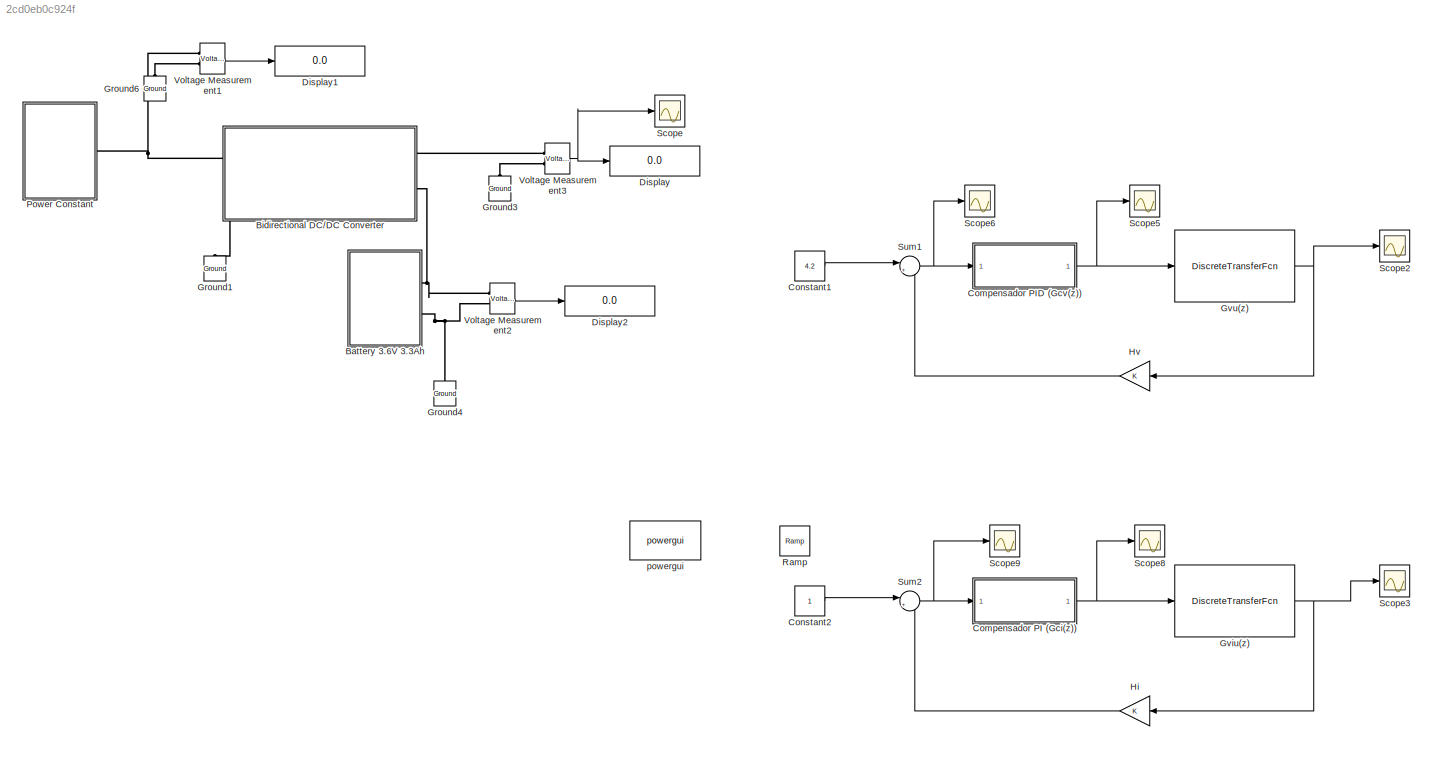
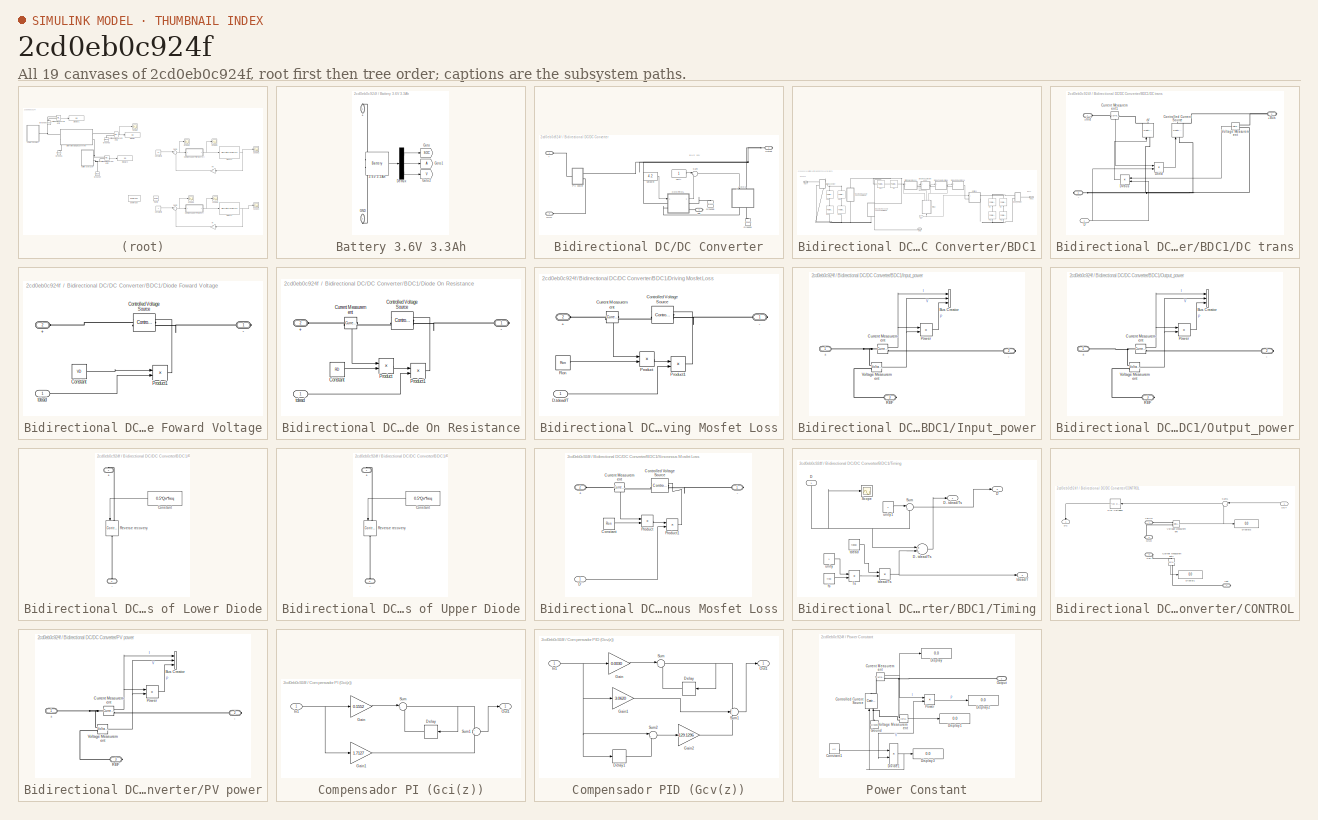
[diagram: thumbnail index - all 19 canvases of the model, root first then tree order]
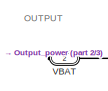
[diagram: Bidirectional DC/DC Converter/BDC1 - part 1/3, top left region]
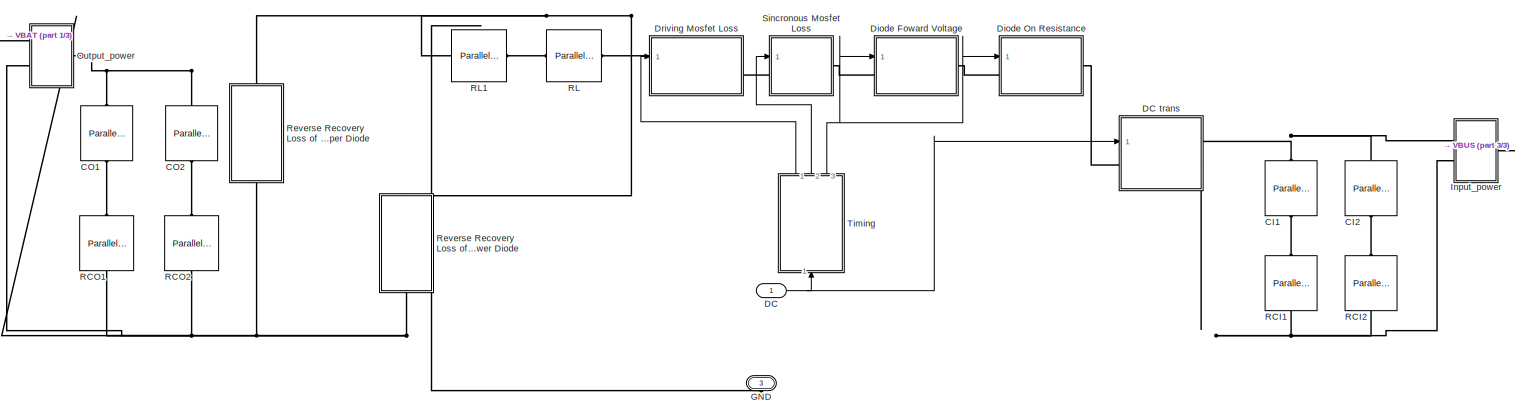
[diagram: Bidirectional DC/DC Converter/BDC1 - part 2/3, most of the canvas]
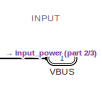
[diagram: Bidirectional DC/DC Converter/BDC1 - part 3/3, middle right region]
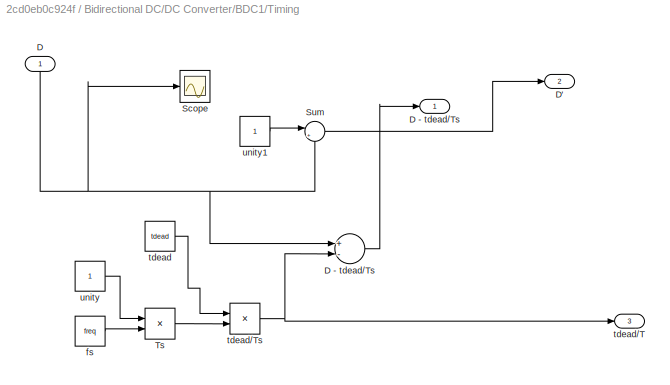
MODEL slx_2cd0eb0c924f
KIND model
CONFIG AbsTol = auto
CONFIG EnableMultiTasking = off
CONFIG FixedStep = auto
CONFIG MaxStep = auto
CONFIG MinStep = auto
CONFIG RelTol = 1e-3
CONFIG SampleTimeConstraint = Unconstrained
CONFIG Solver = VariableStepAuto
CONFIG SolverName = VariableStepAuto
CONFIG StartTime = 0.0
CONFIG StopTime = 1
BLOCK [SubSystem] Battery 3.6V 3.3Ah
  Ports = [0, 0, 0, 0, 0, 0, 2]
  RequestExecContextInheritance = off
BLOCK [PMIOPort] Battery 3.6V 3.3Ah/+
  Side = Right
BLOCK [Reference] Battery 3.6V 3.3Ah/3.6V 3.3Ah  REF=electricdrivelib/Extra Sources/Battery
  Ports = [0, 1, 0, 0, 0, 2]
  SourceBlock = electricdrivelib/Extra Sources/Battery
  SourceProductBaseCode = PS
  SourceProductName = Simscape Electrical
  SourceType = Battery
BLOCK [Demux] Battery 3.6V 3.3Ah/Demux
  DisplayOption = bar
  Outputs = 3
  Ports = [1, 3]
BLOCK [PMIOPort] Battery 3.6V 3.3Ah/GND
  Port = 2
  Side = Right
BLOCK [Goto] Battery 3.6V 3.3Ah/Goto
  GotoTag = SOC
  TagVisibility = global
BLOCK [Goto] Battery 3.6V 3.3Ah/Goto1
  TagVisibility = global
BLOCK [Goto] Battery 3.6V 3.3Ah/Goto2
  GotoTag = V
  TagVisibility = global
BLOCK [SubSystem] Bidirectional DC//DC Converter
  Ports = [0, 0, 0, 0, 0, 2, 2]
  RequestExecContextInheritance = off
BLOCK [PMIOPort] Bidirectional DC//DC Converter/+
  Side = Left
BLOCK [SubSystem] Bidirectional DC//DC Converter/BDC1
  Ports = [1, 0, 0, 0, 0, 1, 2]
  RequestExecContextInheritance = off
BLOCK [Reference] Bidirectional DC//DC Converter/BDC1/CI1  REF=powerlib/Elements/Parallel RLC Branch
  AttributesFormatString = \n
  Ports = [0, 0, 0, 0, 0, 1, 1]
  SourceBlock = powerlib/Elements/Parallel RLC Branch
  SourceProductBaseCode = PS
  SourceProductName = Simscape Electrical
  SourceType = Parallel RLC Branch
BLOCK [Reference] Bidirectional DC//DC Converter/BDC1/CI2  REF=powerlib/Elements/Parallel RLC Branch
  AttributesFormatString = \n
  Ports = [0, 0, 0, 0, 0, 1, 1]
  SourceBlock = powerlib/Elements/Parallel RLC Branch
  SourceProductBaseCode = PS
  SourceProductName = Simscape Electrical
  SourceType = Parallel RLC Branch
BLOCK [Reference] Bidirectional DC//DC Converter/BDC1/CO1  REF=powerlib/Elements/Parallel RLC Branch
  AttributesFormatString = \n
  Ports = [0, 0, 0, 0, 0, 1, 1]
  SourceBlock = powerlib/Elements/Parallel RLC Branch
  SourceProductBaseCode = PS
  SourceProductName = Simscape Electrical
  SourceType = Parallel RLC Branch
BLOCK [Reference] Bidirectional DC//DC Converter/BDC1/CO2  REF=powerlib/Elements/Parallel RLC Branch
  AttributesFormatString = \n
  Ports = [0, 0, 0, 0, 0, 1, 1]
  SourceBlock = powerlib/Elements/Parallel RLC Branch
  SourceProductBaseCode = PS
  SourceProductName = Simscape Electrical
  SourceType = Parallel RLC Branch
BLOCK [Inport] Bidirectional DC//DC Converter/BDC1/DC
  IconDisplay = Port number
BLOCK [SubSystem] Bidirectional DC//DC Converter/BDC1/DC trans
  Ports = [1, 0, 0, 0, 0, 1, 2]
  RequestExecContextInheritance = off
BLOCK [PMIOPort] Bidirectional DC//DC Converter/BDC1/DC trans/+Bus
  Port = 2
  Side = Right
BLOCK [PMIOPort] Bidirectional DC//DC Converter/BDC1/DC trans/+Ind
  Side = Left
BLOCK [PMIOPort] Bidirectional DC//DC Converter/BDC1/DC trans/-
  Port = 3
  Side = Right
BLOCK [Reference] Bidirectional DC//DC Converter/BDC1/DC trans/Controlled Current Source  REF=powerlib/Electrical
Sources/Controlled Current Source
  Ports = [1, 0, 0, 0, 0, 1, 1]
  SourceBlock = powerlib/Electrical\nSources/Controlled Current Source
  SourceProductBaseCode = PS
  SourceProductName = Simscape Electrical
  SourceType = Controlled Current Source
BLOCK [Reference] Bidirectional DC//DC Converter/BDC1/DC trans/Current Measurement1  REF=powerlib/Measurements/Current Measurement
  Ports = [0, 1, 0, 0, 0, 1, 1]
  SourceBlock = powerlib/Measurements/Current Measurement
  SourceProductBaseCode = PS
  SourceProductName = Simscape Electrical
  SourceType = Current Measurement
  UserDataPersistent = on
BLOCK [Inport] Bidirectional DC//DC Converter/BDC1/DC trans/D
  IconDisplay = Port number
BLOCK [Product] Bidirectional DC//DC Converter/BDC1/DC trans/DIind
  InputSameDT = off
  OutDataTypeStr = Inherit: Inherit via internal rule
  Ports = [2, 1]
  RndMeth = Floor
  SaturateOnIntegerOverflow = off
BLOCK [Product] Bidirectional DC//DC Converter/BDC1/DC trans/DVbus
  InputSameDT = off
  OutDataTypeStr = Inherit: Inherit via internal rule
  Ports = [2, 1]
  RndMeth = Floor
  SaturateOnIntegerOverflow = off
BLOCK [Reference] Bidirectional DC//DC Converter/BDC1/DC trans/Voltage Measurement  REF=powerlib/Measurements/Voltage Measurement
  Ports = [0, 1, 0, 0, 0, 2]
  SourceBlock = powerlib/Measurements/Voltage Measurement
  SourceProductBaseCode = PS
  SourceProductName = Simscape Electrical
  SourceType = Voltage Measurement
  UserDataPersistent = on
BLOCK [Reference] Bidirectional DC//DC Converter/BDC1/DC trans/cV  REF=powerlib/Electrical
Sources/Controlled Voltage Source
  Ports = [1, 0, 0, 0, 0, 1, 1]
  SourceBlock = powerlib/Electrical\nSources/Controlled Voltage Source
  SourceProductBaseCode = PS
  SourceProductName = Simscape Electrical
  SourceType = Controlled Voltage Source
BLOCK [SubSystem] Bidirectional DC//DC Converter/BDC1/Diode Foward Voltage
  Ports = [1, 0, 0, 0, 0, 1, 1]
  RequestExecContextInheritance = off
BLOCK [PMIOPort] Bidirectional DC//DC Converter/BDC1/Diode Foward Voltage/+
  Port = 2
  Side = Left
BLOCK [PMIOPort] Bidirectional DC//DC Converter/BDC1/Diode Foward Voltage/-
  Side = Right
BLOCK [Constant] Bidirectional DC//DC Converter/BDC1/Diode Foward Voltage/Constant
  Value = VD
BLOCK [Reference] Bidirectional DC//DC Converter/BDC1/Diode Foward Voltage/Controlled Voltage Source  REF=powerlib/Electrical
Sources/Controlled Voltage Source
  Ports = [1, 0, 0, 0, 0, 1, 1]
  SourceBlock = powerlib/Electrical\nSources/Controlled Voltage Source
  SourceProductBaseCode = PS
  SourceProductName = Simscape Electrical
  SourceType = Controlled Voltage Source
BLOCK [Product] Bidirectional DC//DC Converter/BDC1/Diode Foward Voltage/Product1
  InputSameDT = off
  OutDataTypeStr = Inherit: Inherit via internal rule
  Ports = [2, 1]
  RndMeth = Floor
  SaturateOnIntegerOverflow = off
BLOCK [Inport] Bidirectional DC//DC Converter/BDC1/Diode Foward Voltage/tdead
  IconDisplay = Port number
BLOCK [SubSystem] Bidirectional DC//DC Converter/BDC1/Diode On Resistance
  Ports = [1, 0, 0, 0, 0, 1, 1]
  RequestExecContextInheritance = off
BLOCK [PMIOPort] Bidirectional DC//DC Converter/BDC1/Diode On Resistance/+
  Port = 2
  Side = Left
BLOCK [PMIOPort] Bidirectional DC//DC Converter/BDC1/Diode On Resistance/-
  Side = Right
BLOCK [Constant] Bidirectional DC//DC Converter/BDC1/Diode On Resistance/Constant
  Value = RD
BLOCK [Reference] Bidirectional DC//DC Converter/BDC1/Diode On Resistance/Controlled Voltage Source  REF=powerlib/Electrical
Sources/Controlled Voltage Source
  Ports = [1, 0, 0, 0, 0, 1, 1]
  SourceBlock = powerlib/Electrical\nSources/Controlled Voltage Source
  SourceProductBaseCode = PS
  SourceProductName = Simscape Electrical
  SourceType = Controlled Voltage Source
BLOCK [Reference] Bidirectional DC//DC Converter/BDC1/Diode On Resistance/Current Measurement  REF=powerlib/Measurements/Current Measurement
  Ports = [0, 1, 0, 0, 0, 1, 1]
  SourceBlock = powerlib/Measurements/Current Measurement
  SourceProductBaseCode = PS
  SourceProductName = Simscape Electrical
  SourceType = Current Measurement
  UserDataPersistent = on
BLOCK [Product] Bidirectional DC//DC Converter/BDC1/Diode On Resistance/Product
  InputSameDT = off
  OutDataTypeStr = Inherit: Inherit via internal rule
  Ports = [2, 1]
  RndMeth = Floor
  SaturateOnIntegerOverflow = off
BLOCK [Product] Bidirectional DC//DC Converter/BDC1/Diode On Resistance/Product1
  InputSameDT = off
  OutDataTypeStr = Inherit: Inherit via internal rule
  Ports = [2, 1]
  RndMeth = Floor
  SaturateOnIntegerOverflow = off
BLOCK [Inport] Bidirectional DC//DC Converter/BDC1/Diode On Resistance/tdead
  IconDisplay = Port number
BLOCK [SubSystem] Bidirectional DC//DC Converter/BDC1/Driving Mosfet Loss
  Ports = [1, 0, 0, 0, 0, 1, 1]
  RequestExecContextInheritance = off
BLOCK [PMIOPort] Bidirectional DC//DC Converter/BDC1/Driving Mosfet Loss/+
  Port = 2
  Side = Left
BLOCK [PMIOPort] Bidirectional DC//DC Converter/BDC1/Driving Mosfet Loss/-
  Side = Right
BLOCK [Reference] Bidirectional DC//DC Converter/BDC1/Driving Mosfet Loss/Controlled Voltage Source  REF=powerlib/Electrical
Sources/Controlled Voltage Source
  Ports = [1, 0, 0, 0, 0, 1, 1]
  SourceBlock = powerlib/Electrical\nSources/Controlled Voltage Source
  SourceProductBaseCode = PS
  SourceProductName = Simscape Electrical
  SourceType = Controlled Voltage Source
BLOCK [Reference] Bidirectional DC//DC Converter/BDC1/Driving Mosfet Loss/Current Measurement  REF=powerlib/Measurements/Current Measurement
  Ports = [0, 1, 0, 0, 0, 1, 1]
  SourceBlock = powerlib/Measurements/Current Measurement
  SourceProductBaseCode = PS
  SourceProductName = Simscape Electrical
  SourceType = Current Measurement
  UserDataPersistent = on
BLOCK [Inport] Bidirectional DC//DC Converter/BDC1/Driving Mosfet Loss/D-tdead//T
  IconDisplay = Port number
BLOCK [Product] Bidirectional DC//DC Converter/BDC1/Driving Mosfet Loss/Product
  InputSameDT = off
  OutDataTypeStr = Inherit: Inherit via internal rule
  Ports = [2, 1]
  RndMeth = Floor
  SaturateOnIntegerOverflow = off
BLOCK [Product] Bidirectional DC//DC Converter/BDC1/Driving Mosfet Loss/Product1
  InputSameDT = off
  OutDataTypeStr = Inherit: Inherit via internal rule
  Ports = [2, 1]
  RndMeth = Floor
  SaturateOnIntegerOverflow = off
BLOCK [Constant] Bidirectional DC//DC Converter/BDC1/Driving Mosfet Loss/Ron
  Value = Ron
BLOCK [PMIOPort] Bidirectional DC//DC Converter/BDC1/GND
  Port = 3
  Side = Right
BLOCK [SubSystem] Bidirectional DC//DC Converter/BDC1/Input_power
  Ports = [0, 0, 0, 0, 0, 1, 2]
  RequestExecContextInheritance = off
BLOCK [PMIOPort] Bidirectional DC//DC Converter/BDC1/Input_power/+
  Side = Left
BLOCK [PMIOPort] Bidirectional DC//DC Converter/BDC1/Input_power/-
  Port = 2
  Side = Right
BLOCK [BusCreator] Bidirectional DC//DC Converter/BDC1/Input_power/Bus Creator
  DisplayOption = bar
  InheritFromInputs = on
  Inputs = 3
  Ports = [3, 1]
BLOCK [Reference] Bidirectional DC//DC Converter/BDC1/Input_power/Current Measurement  REF=powerlib/Measurements/Current Measurement
  Ports = [0, 1, 0, 0, 0, 1, 1]
  SourceBlock = powerlib/Measurements/Current Measurement
  SourceProductBaseCode = PS
  SourceProductName = Simscape Electrical
  SourceType = Current Measurement
  UserDataPersistent = on
BLOCK [Product] Bidirectional DC//DC Converter/BDC1/Input_power/Power
  InputSameDT = off
  OutDataTypeStr = Inherit: Inherit via internal rule
  Ports = [2, 1]
  RndMeth = Floor
  SaturateOnIntegerOverflow = off
BLOCK [PMIOPort] Bidirectional DC//DC Converter/BDC1/Input_power/REF
  Port = 3
  Side = Right
BLOCK [Reference] Bidirectional DC//DC Converter/BDC1/Input_power/Voltage Measurement  REF=powerlib/Measurements/Voltage Measurement
  Ports = [0, 1, 0, 0, 0, 2]
  SourceBlock = powerlib/Measurements/Voltage Measurement
  SourceProductBaseCode = PS
  SourceProductName = Simscape Electrical
  SourceType = Voltage Measurement
  UserDataPersistent = on
BLOCK [SubSystem] Bidirectional DC//DC Converter/BDC1/Output_power
  Ports = [0, 0, 0, 0, 0, 1, 2]
  RequestExecContextInheritance = off
BLOCK [PMIOPort] Bidirectional DC//DC Converter/BDC1/Output_power/+
  Side = Left
BLOCK [PMIOPort] Bidirectional DC//DC Converter/BDC1/Output_power/-
  Port = 2
  Side = Right
BLOCK [BusCreator] Bidirectional DC//DC Converter/BDC1/Output_power/Bus Creator
  DisplayOption = bar
  InheritFromInputs = on
  Inputs = 3
  Ports = [3, 1]
BLOCK [Reference] Bidirectional DC//DC Converter/BDC1/Output_power/Current Measurement  REF=powerlib/Measurements/Current Measurement
  Ports = [0, 1, 0, 0, 0, 1, 1]
  SourceBlock = powerlib/Measurements/Current Measurement
  SourceProductBaseCode = PS
  SourceProductName = Simscape Electrical
  SourceType = Current Measurement
  UserDataPersistent = on
BLOCK [Product] Bidirectional DC//DC Converter/BDC1/Output_power/Power
  InputSameDT = off
  OutDataTypeStr = Inherit: Inherit via internal rule
  Ports = [2, 1]
  RndMeth = Floor
  SaturateOnIntegerOverflow = off
BLOCK [PMIOPort] Bidirectional DC//DC Converter/BDC1/Output_power/REF
  Port = 3
  Side = Right
BLOCK [Reference] Bidirectional DC//DC Converter/BDC1/Output_power/Voltage Measurement  REF=powerlib/Measurements/Voltage Measurement
  Ports = [0, 1, 0, 0, 0, 2]
  SourceBlock = powerlib/Measurements/Voltage Measurement
  SourceProductBaseCode = PS
  SourceProductName = Simscape Electrical
  SourceType = Voltage Measurement
  UserDataPersistent = on
BLOCK [Reference] Bidirectional DC//DC Converter/BDC1/RCI1  REF=powerlib/Elements/Parallel RLC Branch
  AttributesFormatString = \n
  Ports = [0, 0, 0, 0, 0, 1, 1]
  SourceBlock = powerlib/Elements/Parallel RLC Branch
  SourceProductBaseCode = PS
  SourceProductName = Simscape Electrical
  SourceType = Parallel RLC Branch
BLOCK [Reference] Bidirectional DC//DC Converter/BDC1/RCI2  REF=powerlib/Elements/Parallel RLC Branch
  AttributesFormatString = \n
  Ports = [0, 0, 0, 0, 0, 1, 1]
  SourceBlock = powerlib/Elements/Parallel RLC Branch
  SourceProductBaseCode = PS
  SourceProductName = Simscape Electrical
  SourceType = Parallel RLC Branch
BLOCK [Reference] Bidirectional DC//DC Converter/BDC1/RCO1  REF=powerlib/Elements/Parallel RLC Branch
  AttributesFormatString = \n
  Ports = [0, 0, 0, 0, 0, 1, 1]
  SourceBlock = powerlib/Elements/Parallel RLC Branch
  SourceProductBaseCode = PS
  SourceProductName = Simscape Electrical
  SourceType = Parallel RLC Branch
BLOCK [Reference] Bidirectional DC//DC Converter/BDC1/RCO2  REF=powerlib/Elements/Parallel RLC Branch
  AttributesFormatString = \n
  Ports = [0, 0, 0, 0, 0, 1, 1]
  SourceBlock = powerlib/Elements/Parallel RLC Branch
  SourceProductBaseCode = PS
  SourceProductName = Simscape Electrical
  SourceType = Parallel RLC Branch
BLOCK [Reference] Bidirectional DC//DC Converter/BDC1/RL  REF=powerlib/Elements/Parallel RLC Branch
  AttributesFormatString = \n
  Ports = [0, 0, 0, 0, 0, 1, 1]
  SourceBlock = powerlib/Elements/Parallel RLC Branch
  SourceProductBaseCode = PS
  SourceProductName = Simscape Electrical
  SourceType = Parallel RLC Branch
BLOCK [Reference] Bidirectional DC//DC Converter/BDC1/RL1  REF=powerlib/Elements/Parallel RLC Branch
  AttributesFormatString = \n
  Ports = [0, 0, 0, 0, 0, 1, 1]
  SourceBlock = powerlib/Elements/Parallel RLC Branch
  SourceProductBaseCode = PS
  SourceProductName = Simscape Electrical
  SourceType = Parallel RLC Branch
BLOCK [SubSystem] Bidirectional DC//DC Converter/BDC1/Reverse Recovery Loss of Lower Diode
  Ports = [0, 0, 0, 0, 0, 1, 1]
  RequestExecContextInheritance = off
BLOCK [PMIOPort] Bidirectional DC//DC Converter/BDC1/Reverse Recovery Loss of Lower Diode/+
  Side = Right
BLOCK [PMIOPort] Bidirectional DC//DC Converter/BDC1/Reverse Recovery Loss of Lower Diode/-
  Port = 2
  Side = Left
BLOCK [Constant] Bidirectional DC//DC Converter/BDC1/Reverse Recovery Loss of Lower Diode/Constant
  Value = 0.5*Qrr*freq
BLOCK [Reference] Bidirectional DC//DC Converter/BDC1/Reverse Recovery Loss of Lower Diode/Reverse recovery  REF=powerlib/Electrical
Sources/Controlled Current Source
  Ports = [1, 0, 0, 0, 0, 1, 1]
  SourceBlock = powerlib/Electrical\nSources/Controlled Current Source
  SourceProductBaseCode = PS
  SourceProductName = Simscape Electrical
  SourceType = Controlled Current Source
BLOCK [SubSystem] Bidirectional DC//DC Converter/BDC1/Reverse Recovery Loss of Upper Diode
  Ports = [0, 0, 0, 0, 0, 1, 1]
  RequestExecContextInheritance = off
BLOCK [PMIOPort] Bidirectional DC//DC Converter/BDC1/Reverse Recovery Loss of Upper Diode/+
  Side = Right
BLOCK [PMIOPort] Bidirectional DC//DC Converter/BDC1/Reverse Recovery Loss of Upper Diode/-
  Port = 2
  Side = Left
BLOCK [Constant] Bidirectional DC//DC Converter/BDC1/Reverse Recovery Loss of Upper Diode/Constant
  Value = 0.5*Qrr*freq
BLOCK [Reference] Bidirectional DC//DC Converter/BDC1/Reverse Recovery Loss of Upper Diode/Reverse recovery  REF=powerlib/Electrical
Sources/Controlled Current Source
  Ports = [1, 0, 0, 0, 0, 1, 1]
  SourceBlock = powerlib/Electrical\nSources/Controlled Current Source
  SourceProductBaseCode = PS
  SourceProductName = Simscape Electrical
  SourceType = Controlled Current Source
BLOCK [SubSystem] Bidirectional DC//DC Converter/BDC1/Sincronous Mosfet Loss
  Ports = [1, 0, 0, 0, 0, 1, 1]
  RequestExecContextInheritance = off
BLOCK [PMIOPort] Bidirectional DC//DC Converter/BDC1/Sincronous Mosfet Loss/+
  Port = 2
  Side = Left
BLOCK [PMIOPort] Bidirectional DC//DC Converter/BDC1/Sincronous Mosfet Loss/-
  Side = Right
BLOCK [Constant] Bidirectional DC//DC Converter/BDC1/Sincronous Mosfet Loss/Constant
  Value = Ron
BLOCK [Reference] Bidirectional DC//DC Converter/BDC1/Sincronous Mosfet Loss/Controlled Voltage Source  REF=powerlib/Electrical
Sources/Controlled Voltage Source
  Ports = [1, 0, 0, 0, 0, 1, 1]
  SourceBlock = powerlib/Electrical\nSources/Controlled Voltage Source
  SourceProductBaseCode = PS
  SourceProductName = Simscape Electrical
  SourceType = Controlled Voltage Source
BLOCK [Reference] Bidirectional DC//DC Converter/BDC1/Sincronous Mosfet Loss/Current Measurement  REF=powerlib/Measurements/Current Measurement
  Ports = [0, 1, 0, 0, 0, 1, 1]
  SourceBlock = powerlib/Measurements/Current Measurement
  SourceProductBaseCode = PS
  SourceProductName = Simscape Electrical
  SourceType = Current Measurement
  UserDataPersistent = on
BLOCK [Inport] Bidirectional DC//DC Converter/BDC1/Sincronous Mosfet Loss/D'
  IconDisplay = Port number
BLOCK [Product] Bidirectional DC//DC Converter/BDC1/Sincronous Mosfet Loss/Product
  InputSameDT = off
  OutDataTypeStr = Inherit: Inherit via internal rule
  Ports = [2, 1]
  RndMeth = Floor
  SaturateOnIntegerOverflow = off
BLOCK [Product] Bidirectional DC//DC Converter/BDC1/Sincronous Mosfet Loss/Product1
  InputSameDT = off
  OutDataTypeStr = Inherit: Inherit via internal rule
  Ports = [2, 1]
  RndMeth = Floor
  SaturateOnIntegerOverflow = off
BLOCK [SubSystem] Bidirectional DC//DC Converter/BDC1/Timing
  Ports = [1, 3]
  RequestExecContextInheritance = off
BLOCK [Inport] Bidirectional DC//DC Converter/BDC1/Timing/D
  IconDisplay = Port number
BLOCK [Outport] Bidirectional DC//DC Converter/BDC1/Timing/D - tdead//Ts
  IconDisplay = Port number
BLOCK [Sum] Bidirectional DC//DC Converter/BDC1/Timing/D - tdead//Ts 
  InputSameDT = off
  Inputs = +-
  OutDataTypeStr = Inherit: Inherit via internal rule
  Ports = [2, 1]
  SaturateOnIntegerOverflow = off
BLOCK [Outport] Bidirectional DC//DC Converter/BDC1/Timing/D'
  IconDisplay = Port number
  Port = 2
BLOCK [Scope] Bidirectional DC//DC Converter/BDC1/Timing/Scope
  Floating = off
  NumInputPorts = 1
  Ports = [1]
  ScopeSpecificationString = Simulink.scopes.TimeScopeBlockCfg('CurrentConfiguration', extmgr.ConfigurationSet(extmgr.Configuration('Core','General UI',true),extmgr.Configuration('Core','Source UI',true),extmgr.Configuration('Sources','WiredSimulink',true,'DataLoggingVariableName','ScopeData4'),extmgr.Configuration('Visuals','Time Domain',true,'SerializedDisplays',{struct('MinYLimReal','-0.0625','MaxYLimReal','1.0625','YLabel...<+1354ch>
BLOCK [Sum] Bidirectional DC//DC Converter/BDC1/Timing/Sum
  IconShape = round
  InputSameDT = off
  Inputs = |+-
  OutDataTypeStr = Inherit: Inherit via internal rule
  Ports = [2, 1]
  SaturateOnIntegerOverflow = off
BLOCK [Product] Bidirectional DC//DC Converter/BDC1/Timing/Ts
  InputSameDT = off
  Inputs = */
  OutDataTypeStr = Inherit: Inherit via internal rule
  Ports = [2, 1]
  RndMeth = Floor
  SaturateOnIntegerOverflow = off
BLOCK [Constant] Bidirectional DC//DC Converter/BDC1/Timing/fs
  Value = freq
BLOCK [Constant] Bidirectional DC//DC Converter/BDC1/Timing/tdead
  Value = tdead
BLOCK [Outport] Bidirectional DC//DC Converter/BDC1/Timing/tdead//T
  IconDisplay = Port number
  Port = 3
BLOCK [Product] Bidirectional DC//DC Converter/BDC1/Timing/tdead//Ts
  InputSameDT = off
  Inputs = */
  OutDataTypeStr = Inherit: Inherit via internal rule
  Ports = [2, 1]
  RndMeth = Floor
  SaturateOnIntegerOverflow = off
BLOCK [Constant] Bidirectional DC//DC Converter/BDC1/Timing/unity
BLOCK [Constant] Bidirectional DC//DC Converter/BDC1/Timing/unity1
BLOCK [PMIOPort] Bidirectional DC//DC Converter/BDC1/VBAT
  Port = 2
  Side = Right
BLOCK [PMIOPort] Bidirectional DC//DC Converter/BDC1/VBUS 
  Side = Left
BLOCK [SubSystem] Bidirectional DC//DC Converter/CONTROL
  Ports = [1, 1, 0, 0, 0, 2, 2]
  RequestExecContextInheritance = off
BLOCK [PMIOPort] Bidirectional DC//DC Converter/CONTROL/Curr
  Port = 3
  Side = Left
BLOCK [Reference] Bidirectional DC//DC Converter/CONTROL/Current Measurement1  REF=powerlib/Measurements/Current Measurement
  Ports = [0, 1, 0, 0, 0, 1, 1]
  SourceBlock = powerlib/Measurements/Current Measurement
  SourceProductBaseCode = PS
  SourceProductName = Simscape Electrical
  SourceType = Current Measurement
  UserDataPersistent = on
BLOCK [Outport] Bidirectional DC//DC Converter/CONTROL/DC
  IconDisplay = Port number
BLOCK [Display] Bidirectional DC//DC Converter/CONTROL/Display1
  Decimation = 1
  Ports = [1]
BLOCK [Display] Bidirectional DC//DC Converter/CONTROL/Display2
  Decimation = 1
  Ports = [1]
BLOCK [PMIOPort] Bidirectional DC//DC Converter/CONTROL/GND
  Port = 2
  Side = Right
BLOCK [Reference] Bidirectional DC//DC Converter/CONTROL/PID Voltage1  REF=simulink/Continuous/PID Controller
  Ports = [1, 1]
  SourceBlock = simulink/Continuous/PID Controller
  SourceProductBaseCode = SL
  SourceProductName = Simulink
  SourceType = PID 1dof
BLOCK [Inport] Bidirectional DC//DC Converter/CONTROL/SET
  IconDisplay = Port number
BLOCK [Sum] Bidirectional DC//DC Converter/CONTROL/Sum1
  IconShape = round
  InputSameDT = off
  Inputs = |+-
  OutDataTypeStr = Inherit: Inherit via internal rule
  Ports = [2, 1]
  SaturateOnIntegerOverflow = off
BLOCK [PMIOPort] Bidirectional DC//DC Converter/CONTROL/VBUS
  Side = Left
BLOCK [Reference] Bidirectional DC//DC Converter/CONTROL/Voltage Measurement  REF=powerlib/Measurements/Voltage Measurement
  Ports = [0, 1, 0, 0, 0, 2]
  SourceBlock = powerlib/Measurements/Voltage Measurement
  SourceProductBaseCode = PS
  SourceProductName = Simscape Electrical
  SourceType = Voltage Measurement
  UserDataPersistent = on
BLOCK [PMIOPort] Bidirectional DC//DC Converter/CONTROL/iout
  Port = 4
  Side = Right
BLOCK [PMIOPort] Bidirectional DC//DC Converter/GND
  Port = 3
  Side = Left
BLOCK [Reference] Bidirectional DC//DC Converter/Ground1  REF=powerlib/Elements/Ground
  Ports = [0, 0, 0, 0, 0, 1]
  SourceBlock = powerlib/Elements/Ground
  SourceProductBaseCode = PS
  SourceProductName = Simscape Electrical
  SourceType = Ground
BLOCK [Reference] Bidirectional DC//DC Converter/Ground5  REF=powerlib/Elements/Ground
  Ports = [0, 0, 0, 0, 0, 1]
  SourceBlock = powerlib/Elements/Ground
  SourceProductBaseCode = PS
  SourceProductName = Simscape Electrical
  SourceType = Ground
BLOCK [PMIOPort] Bidirectional DC//DC Converter/Output
  Port = 2
  Side = Right
BLOCK [SubSystem] Bidirectional DC//DC Converter/PV power
  Ports = [0, 0, 0, 0, 0, 1, 2]
  RequestExecContextInheritance = off
BLOCK [PMIOPort] Bidirectional DC//DC Converter/PV power/+
  Side = Left
BLOCK [PMIOPort] Bidirectional DC//DC Converter/PV power/-
  Port = 2
  Side = Right
BLOCK [BusCreator] Bidirectional DC//DC Converter/PV power/Bus Creator
  DisplayOption = bar
  InheritFromInputs = on
  Inputs = 3
  Ports = [3, 1]
BLOCK [Reference] Bidirectional DC//DC Converter/PV power/Current Measurement  REF=powerlib/Measurements/Current Measurement
  Ports = [0, 1, 0, 0, 0, 1, 1]
  SourceBlock = powerlib/Measurements/Current Measurement
  SourceProductBaseCode = PS
  SourceProductName = Simscape Electrical
  SourceType = Current Measurement
  UserDataPersistent = on
BLOCK [Product] Bidirectional DC//DC Converter/PV power/Power
  InputSameDT = off
  OutDataTypeStr = Inherit: Inherit via internal rule
  Ports = [2, 1]
  RndMeth = Floor
  SaturateOnIntegerOverflow = off
BLOCK [PMIOPort] Bidirectional DC//DC Converter/PV power/REF
  Port = 3
  Side = Right
BLOCK [Reference] Bidirectional DC//DC Converter/PV power/Voltage Measurement  REF=powerlib/Measurements/Voltage Measurement
  Ports = [0, 1, 0, 0, 0, 2]
  SourceBlock = powerlib/Measurements/Voltage Measurement
  SourceProductBaseCode = PS
  SourceProductName = Simscape Electrical
  SourceType = Voltage Measurement
  UserDataPersistent = on
BLOCK [Sum] Bidirectional DC//DC Converter/Sum
  IconShape = round
  InputSameDT = off
  Inputs = |+-
  OutDataTypeStr = Inherit: Inherit via internal rule
  Ports = [2, 1]
  SaturateOnIntegerOverflow = off
BLOCK [PMIOPort] Bidirectional DC//DC Converter/bat
  Port = 4
  Side = Right
BLOCK [Constant] Bidirectional DC//DC Converter/setpoint
  Value = 4.2
BLOCK [Constant] Bidirectional DC//DC Converter/unity
BLOCK [SubSystem] Compensador PI (Gci(z))
  Ports = [1, 1]
  RequestExecContextInheritance = off
BLOCK [Delay] Compensador PI (Gci(z))/Delay
  DelayLength = 1
  InputPortMap = u0
  Ports = [1, 1]
BLOCK [Gain] Compensador PI (Gci(z))/Gain
  Gain = 0.1552
  OutDataTypeStr = Inherit: Inherit via internal rule
  ParamDataTypeStr = Inherit: Inherit via internal rule
  SaturateOnIntegerOverflow = off
BLOCK [Gain] Compensador PI (Gci(z))/Gain1
  Gain = 1.7127
  OutDataTypeStr = Inherit: Inherit via internal rule
  ParamDataTypeStr = Inherit: Inherit via internal rule
  SaturateOnIntegerOverflow = off
BLOCK [Inport] Compensador PI (Gci(z))/In1
  IconDisplay = Port number
BLOCK [Outport] Compensador PI (Gci(z))/Out1
  IconDisplay = Port number
BLOCK [Sum] Compensador PI (Gci(z))/Sum
  IconShape = round
  InputSameDT = off
  Inputs = |++
  OutDataTypeStr = Inherit: Inherit via internal rule
  Ports = [2, 1]
  SaturateOnIntegerOverflow = off
BLOCK [Sum] Compensador PI (Gci(z))/Sum1
  IconShape = round
  InputSameDT = off
  OutDataTypeStr = Inherit: Inherit via internal rule
  Ports = [2, 1]
  SaturateOnIntegerOverflow = off
BLOCK [SubSystem] Compensador PID (Gcv(z))
  Ports = [1, 1]
  RequestExecContextInheritance = off
BLOCK [Delay] Compensador PID (Gcv(z))/Delay
  DelayLength = 1
  InputPortMap = u0
  Ports = [1, 1]
BLOCK [Delay] Compensador PID (Gcv(z))/Delay1
  DelayLength = 1
  InputPortMap = u0
  Ports = [1, 1]
BLOCK [Gain] Compensador PID (Gcv(z))/Gain
  Gain = 0.0030
  OutDataTypeStr = Inherit: Inherit via internal rule
  ParamDataTypeStr = Inherit: Inherit via internal rule
  SaturateOnIntegerOverflow = off
BLOCK [Gain] Compensador PID (Gcv(z))/Gain1
  Gain = 3.0620
  OutDataTypeStr = Inherit: Inherit via internal rule
  ParamDataTypeStr = Inherit: Inherit via internal rule
  SaturateOnIntegerOverflow = off
BLOCK [Gain] Compensador PID (Gcv(z))/Gain2
  Gain = 129.1296
  OutDataTypeStr = Inherit: Inherit via internal rule
  ParamDataTypeStr = Inherit: Inherit via internal rule
  SaturateOnIntegerOverflow = off
BLOCK [Inport] Compensador PID (Gcv(z))/In1
  IconDisplay = Port number
BLOCK [Outport] Compensador PID (Gcv(z))/Out1
  IconDisplay = Port number
BLOCK [Sum] Compensador PID (Gcv(z))/Sum
  IconShape = round
  InputSameDT = off
  Inputs = |++
  OutDataTypeStr = Inherit: Inherit via internal rule
  Ports = [2, 1]
  SaturateOnIntegerOverflow = off
BLOCK [Sum] Compensador PID (Gcv(z))/Sum1
  IconShape = round
  InputSameDT = off
  Inputs = +++
  OutDataTypeStr = Inherit: Inherit via internal rule
  Ports = [3, 1]
  SaturateOnIntegerOverflow = off
BLOCK [Sum] Compensador PID (Gcv(z))/Sum2
  IconShape = round
  InputSameDT = off
  Inputs = |+-
  OutDataTypeStr = Inherit: Inherit via internal rule
  Ports = [2, 1]
  SaturateOnIntegerOverflow = off
BLOCK [Constant] Constant1
  Value = 4.2
  VectorParams1D = off
BLOCK [Constant] Constant2
  VectorParams1D = off
BLOCK [Display] Display
  Decimation = 1
  Ports = [1]
BLOCK [Display] Display1
  Decimation = 1
  Ports = [1]
BLOCK [Display] Display2
  Decimation = 1
  Ports = [1]
BLOCK [Reference] Ground1  REF=powerlib/Elements/Ground
  Ports = [0, 0, 0, 0, 0, 1]
  SourceBlock = powerlib/Elements/Ground
  SourceProductBaseCode = PS
  SourceProductName = Simscape Electrical
  SourceType = Ground
BLOCK [Reference] Ground3  REF=powerlib/Elements/Ground
  Ports = [0, 0, 0, 0, 0, 1]
  SourceBlock = powerlib/Elements/Ground
  SourceProductBaseCode = PS
  SourceProductName = Simscape Electrical
  SourceType = Ground
BLOCK [Reference] Ground4  REF=powerlib/Elements/Ground
  Ports = [0, 0, 0, 0, 0, 1]
  SourceBlock = powerlib/Elements/Ground
  SourceProductBaseCode = PS
  SourceProductName = Simscape Electrical
  SourceType = Ground
BLOCK [Reference] Ground6  REF=powerlib/Elements/Ground
  Ports = [0, 0, 0, 0, 0, 1]
  SourceBlock = powerlib/Elements/Ground
  SourceProductBaseCode = PS
  SourceProductName = Simscape Electrical
  SourceType = Ground
BLOCK [DiscreteTransferFcn] Gviu(z)
  Denominator = [1 -1.998 0.9981]
  InputPortMap = u0
  Numerator = [0.2044 -0.2044]
  Ports = [1, 1]
BLOCK [DiscreteTransferFcn] Gvu(z)
  Denominator = [1 -1.99 0.9902]
  InputPortMap = u0
  Numerator = [0.002363 0.001098]
  Ports = [1, 1]
BLOCK [Gain] Hi
  OutDataTypeStr = Inherit: Inherit via internal rule
  ParamDataTypeStr = Inherit: Inherit via internal rule
  SaturateOnIntegerOverflow = off
BLOCK [Gain] Hv
  OutDataTypeStr = Inherit: Inherit via internal rule
  ParamDataTypeStr = Inherit: Inherit via internal rule
  SaturateOnIntegerOverflow = off
BLOCK [SubSystem] Power Constant
  Ports = [0, 0, 0, 0, 0, 0, 1]
  RequestExecContextInheritance = off
BLOCK [Constant] Power Constant/Constant1
  Value = 4.2
  VectorParams1D = off
BLOCK [Reference] Power Constant/Controlled Current Source  REF=powerlib/Electrical
Sources/Controlled Current Source
  Ports = [1, 0, 0, 0, 0, 1, 1]
  SourceBlock = powerlib/Electrical\nSources/Controlled Current Source
  SourceProductBaseCode = PS
  SourceProductName = Simscape Electrical
  SourceType = Controlled Current Source
BLOCK [Reference] Power Constant/Current Measurement  REF=powerlib/Measurements/Current Measurement
  Ports = [0, 1, 0, 0, 0, 1, 1]
  SourceBlock = powerlib/Measurements/Current Measurement
  SourceProductBaseCode = PS
  SourceProductName = Simscape Electrical
  SourceType = Current Measurement
  UserDataPersistent = on
BLOCK [Display] Power Constant/Display
  Decimation = 1
  Ports = [1]
BLOCK [Display] Power Constant/Display1
  Decimation = 1
  Ports = [1]
BLOCK [Display] Power Constant/Display2
  Decimation = 1
  Ports = [1]
BLOCK [Display] Power Constant/Display3
  Decimation = 1
  Ports = [1]
BLOCK [Product] Power Constant/Divide1
  InputSameDT = off
  Inputs = */
  OutDataTypeStr = Inherit: Inherit via internal rule
  Ports = [2, 1]
  RndMeth = Floor
  SaturateOnIntegerOverflow = off
BLOCK [Reference] Power Constant/Ground  REF=powerlib/Elements/Ground
  Ports = [0, 0, 0, 0, 0, 1]
  SourceBlock = powerlib/Elements/Ground
  SourceProductBaseCode = PS
  SourceProductName = Simscape Electrical
  SourceType = Ground
BLOCK [PMIOPort] Power Constant/Output
  Side = Right
BLOCK [Product] Power Constant/Power
  InputSameDT = off
  OutDataTypeStr = Inherit: Inherit via internal rule
  Ports = [2, 1]
  RndMeth = Floor
  SaturateOnIntegerOverflow = off
BLOCK [Reference] Power Constant/Voltage Measurement  REF=powerlib/Measurements/Voltage Measurement
  Ports = [0, 1, 0, 0, 0, 2]
  SourceBlock = powerlib/Measurements/Voltage Measurement
  SourceProductBaseCode = PS
  SourceProductName = Simscape Electrical
  SourceType = Voltage Measurement
  UserDataPersistent = on
BLOCK [Reference] Ramp  REF=simulink/Sources/Ramp
  Ports = [0, 1]
  SourceBlock = simulink/Sources/Ramp
  SourceProductBaseCode = SL
  SourceProductName = Simulink
  SourceType = Ramp
BLOCK [Scope] Scope
  Floating = off
  NumInputPorts = 1
  Ports = [1]
  ScopeSpecificationString = Simulink.scopes.TimeScopeBlockCfg('CurrentConfiguration', extmgr.ConfigurationSet(extmgr.Configuration('Core','General UI',true),extmgr.Configuration('Core','Source UI',true),extmgr.Configuration('Sources','WiredSimulink',true,'DataLoggingVariableName','ScopeData1'),extmgr.Configuration('Visuals','Time Domain',true,'SerializedDisplays',{struct('MinYLimReal','-2.11017','MaxYLimReal','11.81531','YLa...<+1431ch>
BLOCK [Scope] Scope2
  Floating = off
  NumInputPorts = 1
  Ports = [1]
  ScopeSpecificationString = Simulink.scopes.TimeScopeBlockCfg('CurrentConfiguration', extmgr.ConfigurationSet(extmgr.Configuration('Core','General UI',true),extmgr.Configuration('Core','Source UI',true),extmgr.Configuration('Sources','WiredSimulink',true,'DataLoggingVariableName','ScopeData1'),extmgr.Configuration('Visuals','Time Domain',true,'SerializedDisplays',{struct('MinYLimReal','-4.13649','MaxYLimReal','6.60345','YLab...<+1796ch>
BLOCK [Scope] Scope3
  Floating = off
  NumInputPorts = 1
  Ports = [1]
  ScopeSpecificationString = Simulink.scopes.TimeScopeBlockCfg('CurrentConfiguration', extmgr.ConfigurationSet(extmgr.Configuration('Core','General UI',true),extmgr.Configuration('Core','Source UI',true),extmgr.Configuration('Sources','WiredSimulink',true,'DataLoggingVariableName','ScopeData1'),extmgr.Configuration('Visuals','Time Domain',true,'SerializedDisplays',{struct('MinYLimReal','0.00000','MaxYLimReal','2.00000','YLabe...<+1768ch>
BLOCK [Scope] Scope5
  Floating = off
  NumInputPorts = 1
  Ports = [1]
  ScopeSpecificationString = Simulink.scopes.TimeScopeBlockCfg('CurrentConfiguration', extmgr.ConfigurationSet(extmgr.Configuration('Core','General UI',true),extmgr.Configuration('Core','Source UI',true),extmgr.Configuration('Sources','WiredSimulink',true,'DataLoggingVariableName','ScopeData5'),extmgr.Configuration('Visuals','Time Domain',true,'SerializedDisplays',{struct('MinYLimReal','-4.13649','MaxYLimReal','6.60345','YLab...<+1448ch>
BLOCK [Scope] Scope6
  Floating = off
  NumInputPorts = 1
  Ports = [1]
  ScopeSpecificationString = Simulink.scopes.TimeScopeBlockCfg('CurrentConfiguration', extmgr.ConfigurationSet(extmgr.Configuration('Core','General UI',true),extmgr.Configuration('Core','Source UI',true),extmgr.Configuration('Sources','WiredSimulink',true,'DataLoggingVariableName','ScopeData6'),extmgr.Configuration('Visuals','Time Domain',true,'SerializedDisplays',{struct('MinYLimReal','-27.98955','MaxYLimReal','43.79869','YL...<+1417ch>
BLOCK [Scope] Scope8
  Floating = off
  NumInputPorts = 1
  Ports = [1]
  ScopeSpecificationString = Simulink.scopes.TimeScopeBlockCfg('CurrentConfiguration', extmgr.ConfigurationSet(extmgr.Configuration('Core','General UI',true),extmgr.Configuration('Core','Source UI',true),extmgr.Configuration('Sources','WiredSimulink',true,'DataLoggingVariableName','ScopeData2'),extmgr.Configuration('Visuals','Time Domain',true,'SerializedDisplays',{struct('MinYLimReal','-4.13649','MaxYLimReal','6.60345','YLab...<+1447ch>
BLOCK [Scope] Scope9
  Floating = off
  NumInputPorts = 1
  Ports = [1]
  ScopeSpecificationString = Simulink.scopes.TimeScopeBlockCfg('CurrentConfiguration', extmgr.ConfigurationSet(extmgr.Configuration('Core','General UI',true),extmgr.Configuration('Core','Source UI',true),extmgr.Configuration('Sources','WiredSimulink',true,'DataLoggingVariableName','ScopeData3'),extmgr.Configuration('Visuals','Time Domain',true,'SerializedDisplays',{struct('MinYLimReal','-27.98955','MaxYLimReal','43.79869','YL...<+1416ch>
BLOCK [Sum] Sum1
  IconShape = round
  InputSameDT = off
  Inputs = |+-
  OutDataTypeStr = Inherit: Inherit via internal rule
  Ports = [2, 1]
  SaturateOnIntegerOverflow = off
BLOCK [Sum] Sum2
  IconShape = round
  InputSameDT = off
  Inputs = |+-
  OutDataTypeStr = Inherit: Inherit via internal rule
  Ports = [2, 1]
  SaturateOnIntegerOverflow = off
BLOCK [Reference] Voltage Measurement1  REF=powerlib/Measurements/Voltage Measurement
  Ports = [0, 1, 0, 0, 0, 2]
  SourceBlock = powerlib/Measurements/Voltage Measurement
  SourceProductBaseCode = PS
  SourceProductName = Simscape Electrical
  SourceType = Voltage Measurement
  UserDataPersistent = on
BLOCK [Reference] Voltage Measurement2  REF=powerlib/Measurements/Voltage Measurement
  Ports = [0, 1, 0, 0, 0, 2]
  SourceBlock = powerlib/Measurements/Voltage Measurement
  SourceProductBaseCode = PS
  SourceProductName = Simscape Electrical
  SourceType = Voltage Measurement
  UserDataPersistent = on
BLOCK [Reference] Voltage Measurement3  REF=powerlib/Measurements/Voltage Measurement
  Ports = [0, 1, 0, 0, 0, 2]
  SourceBlock = powerlib/Measurements/Voltage Measurement
  SourceProductBaseCode = PS
  SourceProductName = Simscape Electrical
  SourceType = Voltage Measurement
  UserDataPersistent = on
BLOCK [Reference] powergui  REF=powerlib/powergui
  Ports = []
  Priority = 1
  SourceBlock = powerlib/powergui
  SourceProductBaseCode = PS
  SourceProductName = Simscape Electrical
  SourceType = PSB option menu block
ANNOTATION Bidirectional DC//DC Converter: BUS 12V
ANNOTATION Bidirectional DC//DC Converter/BDC1: INPUT
ANNOTATION Bidirectional DC//DC Converter/BDC1: OUTPUT
LINE Battery 3.6V 3.3Ah/3.6V 3.3Ah:1 -> Battery 3.6V 3.3Ah/Demux:1
LINE Battery 3.6V 3.3Ah/Demux:1 -> Battery 3.6V 3.3Ah/Goto:1
LINE Battery 3.6V 3.3Ah/Demux:2 -> Battery 3.6V 3.3Ah/Goto1:1
LINE Battery 3.6V 3.3Ah/Demux:3 -> Battery 3.6V 3.3Ah/Goto2:1
LINE Bidirectional DC//DC Converter/BDC1/DC trans/Current Measurement1:1 -> Bidirectional DC//DC Converter/BDC1/DC trans/DIind:1
NET Bidirectional DC//DC Converter/BDC1/DC trans/D:1 -> Bidirectional DC//DC Converter/BDC1/DC trans/DIind:2, Bidirectional DC//DC Converter/BDC1/DC trans/DVbus:2
LINE Bidirectional DC//DC Converter/BDC1/DC trans/DIind:1 -> Bidirectional DC//DC Converter/BDC1/DC trans/Controlled Current Source:1
LINE Bidirectional DC//DC Converter/BDC1/DC trans/DVbus:1 -> Bidirectional DC//DC Converter/BDC1/DC trans/cV:1
LINE Bidirectional DC//DC Converter/BDC1/DC trans/Voltage Measurement:1 -> Bidirectional DC//DC Converter/BDC1/DC trans/DVbus:1
NET Bidirectional DC//DC Converter/BDC1/DC:1 -> Bidirectional DC//DC Converter/BDC1/DC trans:1, Bidirectional DC//DC Converter/BDC1/Timing:1
LINE Bidirectional DC//DC Converter/BDC1/Diode Foward Voltage/Constant:1 -> Bidirectional DC//DC Converter/BDC1/Diode Foward Voltage/Product1:1
LINE Bidirectional DC//DC Converter/BDC1/Diode Foward Voltage/Product1:1 -> Bidirectional DC//DC Converter/BDC1/Diode Foward Voltage/Controlled Voltage Source:1
LINE Bidirectional DC//DC Converter/BDC1/Diode Foward Voltage/tdead:1 -> Bidirectional DC//DC Converter/BDC1/Diode Foward Voltage/Product1:2
LINE Bidirectional DC//DC Converter/BDC1/Diode On Resistance/Constant:1 -> Bidirectional DC//DC Converter/BDC1/Diode On Resistance/Product:2
LINE Bidirectional DC//DC Converter/BDC1/Diode On Resistance/Current Measurement:1 -> Bidirectional DC//DC Converter/BDC1/Diode On Resistance/Product:1
LINE Bidirectional DC//DC Converter/BDC1/Diode On Resistance/Product1:1 -> Bidirectional DC//DC Converter/BDC1/Diode On Resistance/Controlled Voltage Source:1
LINE Bidirectional DC//DC Converter/BDC1/Diode On Resistance/Product:1 -> Bidirectional DC//DC Converter/BDC1/Diode On Resistance/Product1:1
LINE Bidirectional DC//DC Converter/BDC1/Diode On Resistance/tdead:1 -> Bidirectional DC//DC Converter/BDC1/Diode On Resistance/Product1:2
LINE Bidirectional DC//DC Converter/BDC1/Driving Mosfet Loss/Current Measurement:1 -> Bidirectional DC//DC Converter/BDC1/Driving Mosfet Loss/Product:1
LINE Bidirectional DC//DC Converter/BDC1/Driving Mosfet Loss/D-tdead//T:1 -> Bidirectional DC//DC Converter/BDC1/Driving Mosfet Loss/Product1:2
LINE Bidirectional DC//DC Converter/BDC1/Driving Mosfet Loss/Product1:1 -> Bidirectional DC//DC Converter/BDC1/Driving Mosfet Loss/Controlled Voltage Source:1
LINE Bidirectional DC//DC Converter/BDC1/Driving Mosfet Loss/Product:1 -> Bidirectional DC//DC Converter/BDC1/Driving Mosfet Loss/Product1:1
LINE Bidirectional DC//DC Converter/BDC1/Driving Mosfet Loss/Ron:1 -> Bidirectional DC//DC Converter/BDC1/Driving Mosfet Loss/Product:2
NET Bidirectional DC//DC Converter/BDC1/Input_power/Current Measurement:1 -> Bidirectional DC//DC Converter/BDC1/Input_power/Bus Creator:1, Bidirectional DC//DC Converter/BDC1/Input_power/Power:1
LINE Bidirectional DC//DC Converter/BDC1/Input_power/Power:1 -> Bidirectional DC//DC Converter/BDC1/Input_power/Bus Creator:3
NET Bidirectional DC//DC Converter/BDC1/Input_power/Voltage Measurement:1 -> Bidirectional DC//DC Converter/BDC1/Input_power/Bus Creator:2, Bidirectional DC//DC Converter/BDC1/Input_power/Power:2
NET Bidirectional DC//DC Converter/BDC1/Output_power/Current Measurement:1 -> Bidirectional DC//DC Converter/BDC1/Output_power/Bus Creator:1, Bidirectional DC//DC Converter/BDC1/Output_power/Power:1
LINE Bidirectional DC//DC Converter/BDC1/Output_power/Power:1 -> Bidirectional DC//DC Converter/BDC1/Output_power/Bus Creator:3
NET Bidirectional DC//DC Converter/BDC1/Output_power/Voltage Measurement:1 -> Bidirectional DC//DC Converter/BDC1/Output_power/Bus Creator:2, Bidirectional DC//DC Converter/BDC1/Output_power/Power:2
LINE Bidirectional DC//DC Converter/BDC1/Reverse Recovery Loss of Lower Diode/Constant:1 -> Bidirectional DC//DC Converter/BDC1/Reverse Recovery Loss of Lower Diode/Reverse recovery:1
LINE Bidirectional DC//DC Converter/BDC1/Reverse Recovery Loss of Upper Diode/Constant:1 -> Bidirectional DC//DC Converter/BDC1/Reverse Recovery Loss of Upper Diode/Reverse recovery:1
LINE Bidirectional DC//DC Converter/BDC1/Sincronous Mosfet Loss/Constant:1 -> Bidirectional DC//DC Converter/BDC1/Sincronous Mosfet Loss/Product:2
LINE Bidirectional DC//DC Converter/BDC1/Sincronous Mosfet Loss/Current Measurement:1 -> Bidirectional DC//DC Converter/BDC1/Sincronous Mosfet Loss/Product:1
LINE Bidirectional DC//DC Converter/BDC1/Sincronous Mosfet Loss/D':1 -> Bidirectional DC//DC Converter/BDC1/Sincronous Mosfet Loss/Product1:2
LINE Bidirectional DC//DC Converter/BDC1/Sincronous Mosfet Loss/Product1:1 -> Bidirectional DC//DC Converter/BDC1/Sincronous Mosfet Loss/Controlled Voltage Source:1
LINE Bidirectional DC//DC Converter/BDC1/Sincronous Mosfet Loss/Product:1 -> Bidirectional DC//DC Converter/BDC1/Sincronous Mosfet Loss/Product1:1
LINE Bidirectional DC//DC Converter/BDC1/Timing/D - tdead//Ts :1 -> Bidirectional DC//DC Converter/BDC1/Timing/D - tdead//Ts:1
NET Bidirectional DC//DC Converter/BDC1/Timing/D:1 -> Bidirectional DC//DC Converter/BDC1/Timing/D - tdead//Ts :1, Bidirectional DC//DC Converter/BDC1/Timing/Scope:1, Bidirectional DC//DC Converter/BDC1/Timing/Sum:2
LINE Bidirectional DC//DC Converter/BDC1/Timing/Sum:1 -> Bidirectional DC//DC Converter/BDC1/Timing/D':1
LINE Bidirectional DC//DC Converter/BDC1/Timing/Ts:1 -> Bidirectional DC//DC Converter/BDC1/Timing/tdead//Ts:2
LINE Bidirectional DC//DC Converter/BDC1/Timing/fs:1 -> Bidirectional DC//DC Converter/BDC1/Timing/Ts:2
NET Bidirectional DC//DC Converter/BDC1/Timing/tdead//Ts:1 -> Bidirectional DC//DC Converter/BDC1/Timing/D - tdead//Ts :2, Bidirectional DC//DC Converter/BDC1/Timing/tdead//T:1
LINE Bidirectional DC//DC Converter/BDC1/Timing/tdead:1 -> Bidirectional DC//DC Converter/BDC1/Timing/tdead//Ts:1
LINE Bidirectional DC//DC Converter/BDC1/Timing/unity1:1 -> Bidirectional DC//DC Converter/BDC1/Timing/Sum:1
LINE Bidirectional DC//DC Converter/BDC1/Timing/unity:1 -> Bidirectional DC//DC Converter/BDC1/Timing/Ts:1
LINE Bidirectional DC//DC Converter/BDC1/Timing:1 -> Bidirectional DC//DC Converter/BDC1/Driving Mosfet Loss:1
LINE Bidirectional DC//DC Converter/BDC1/Timing:2 -> Bidirectional DC//DC Converter/BDC1/Sincronous Mosfet Loss:1
NET Bidirectional DC//DC Converter/BDC1/Timing:3 -> Bidirectional DC//DC Converter/BDC1/Diode Foward Voltage:1, Bidirectional DC//DC Converter/BDC1/Diode On Resistance:1
LINE Bidirectional DC//DC Converter/CONTROL/Current Measurement1:1 -> Bidirectional DC//DC Converter/CONTROL/Display1:1
LINE Bidirectional DC//DC Converter/CONTROL/PID Voltage1:1 -> Bidirectional DC//DC Converter/CONTROL/DC:1
LINE Bidirectional DC//DC Converter/CONTROL/SET:1 -> Bidirectional DC//DC Converter/CONTROL/Sum1:1
LINE Bidirectional DC//DC Converter/CONTROL/Sum1:1 -> Bidirectional DC//DC Converter/CONTROL/PID Voltage1:1
NET Bidirectional DC//DC Converter/CONTROL/Voltage Measurement:1 -> Bidirectional DC//DC Converter/CONTROL/Display2:1, Bidirectional DC//DC Converter/CONTROL/Sum1:2
LINE Bidirectional DC//DC Converter/CONTROL:1 -> Bidirectional DC//DC Converter/Sum:2
NET Bidirectional DC//DC Converter/PV power/Current Measurement:1 -> Bidirectional DC//DC Converter/PV power/Bus Creator:1, Bidirectional DC//DC Converter/PV power/Power:1
LINE Bidirectional DC//DC Converter/PV power/Power:1 -> Bidirectional DC//DC Converter/PV power/Bus Creator:3
NET Bidirectional DC//DC Converter/PV power/Voltage Measurement:1 -> Bidirectional DC//DC Converter/PV power/Bus Creator:2, Bidirectional DC//DC Converter/PV power/Power:2
LINE Bidirectional DC//DC Converter/Sum:1 -> Bidirectional DC//DC Converter/BDC1:1
LINE Bidirectional DC//DC Converter/setpoint:1 -> Bidirectional DC//DC Converter/CONTROL:1
LINE Bidirectional DC//DC Converter/unity:1 -> Bidirectional DC//DC Converter/Sum:1
LINE Compensador PI (Gci(z))/Delay:1 -> Compensador PI (Gci(z))/Sum:2
LINE Compensador PI (Gci(z))/Gain1:1 -> Compensador PI (Gci(z))/Sum1:2
LINE Compensador PI (Gci(z))/Gain:1 -> Compensador PI (Gci(z))/Sum:1
NET Compensador PI (Gci(z))/In1:1 -> Compensador PI (Gci(z))/Gain1:1, Compensador PI (Gci(z))/Gain:1
LINE Compensador PI (Gci(z))/Sum1:1 -> Compensador PI (Gci(z))/Out1:1
NET Compensador PI (Gci(z))/Sum:1 -> Compensador PI (Gci(z))/Delay:1, Compensador PI (Gci(z))/Sum1:1
NET Compensador PI (Gci(z)):1 -> Gviu(z):1, Scope8:1
LINE Compensador PID (Gcv(z))/Delay1:1 -> Compensador PID (Gcv(z))/Sum2:2
LINE Compensador PID (Gcv(z))/Delay:1 -> Compensador PID (Gcv(z))/Sum:2
LINE Compensador PID (Gcv(z))/Gain1:1 -> Compensador PID (Gcv(z))/Sum1:2
LINE Compensador PID (Gcv(z))/Gain2:1 -> Compensador PID (Gcv(z))/Sum1:3
LINE Compensador PID (Gcv(z))/Gain:1 -> Compensador PID (Gcv(z))/Sum:1
NET Compensador PID (Gcv(z))/In1:1 -> Compensador PID (Gcv(z))/Delay1:1, Compensador PID (Gcv(z))/Gain1:1, Compensador PID (Gcv(z))/Gain:1, Compensador PID (Gcv(z))/Sum2:1
LINE Compensador PID (Gcv(z))/Sum1:1 -> Compensador PID (Gcv(z))/Out1:1
LINE Compensador PID (Gcv(z))/Sum2:1 -> Compensador PID (Gcv(z))/Gain2:1
NET Compensador PID (Gcv(z))/Sum:1 -> Compensador PID (Gcv(z))/Delay:1, Compensador PID (Gcv(z))/Sum1:1
NET Compensador PID (Gcv(z)):1 -> Gvu(z):1, Scope5:1
LINE Constant1:1 -> Sum1:1
LINE Constant2:1 -> Sum2:1
NET Gviu(z):1 -> Hi:1, Scope3:1
NET Gvu(z):1 -> Hv:1, Scope2:1
LINE Hi:1 -> Sum2:2
LINE Hv:1 -> Sum1:2
LINE Power Constant/Constant1:1 -> Power Constant/Divide1:1
NET Power Constant/Current Measurement:1 -> Power Constant/Display:1, Power Constant/Power:1
NET Power Constant/Divide1:1 -> Power Constant/Controlled Current Source:1, Power Constant/Display3:1
LINE Power Constant/Power:1 -> Power Constant/Display2:1
NET Power Constant/Voltage Measurement:1 -> Power Constant/Display1:1, Power Constant/Divide1:2, Power Constant/Power:2
NET Sum1:1 -> Compensador PID (Gcv(z)):1, Scope6:1
NET Sum2:1 -> Compensador PI (Gci(z)):1, Scope9:1
LINE Voltage Measurement1:1 -> Display1:1
LINE Voltage Measurement2:1 -> Display2:1
NET Voltage Measurement3:1 -> Display:1, Scope:1
PLINE Battery 3.6V 3.3Ah/+:RConn1 -- Battery 3.6V 3.3Ah/3.6V 3.3Ah:LConn1
PLINE Battery 3.6V 3.3Ah/3.6V 3.3Ah:LConn2 -- Battery 3.6V 3.3Ah/GND:RConn1
PNET net1: Battery 3.6V 3.3Ah:RConn1 -- Bidirectional DC//DC Converter:RConn2 -- Voltage Measurement2:LConn1
PNET net2: Battery 3.6V 3.3Ah:RConn2 -- Ground4:LConn1 -- Voltage Measurement2:LConn2
PLINE Bidirectional DC//DC Converter/+:RConn1 -- Bidirectional DC//DC Converter/PV power:LConn1
PNET net3: Bidirectional DC//DC Converter/BDC1/CI1:LConn1 -- Bidirectional DC//DC Converter/BDC1/CI2:LConn1 -- Bidirectional DC//DC Converter/BDC1/DC trans:RConn1 -- Bidirectional DC//DC Converter/BDC1/Input_power:RConn1
PLINE Bidirectional DC//DC Converter/BDC1/CI1:RConn1 -- Bidirectional DC//DC Converter/BDC1/RCI1:LConn1
PLINE Bidirectional DC//DC Converter/BDC1/CI2:RConn1 -- Bidirectional DC//DC Converter/BDC1/RCI2:LConn1
PNET net4: Bidirectional DC//DC Converter/BDC1/CO1:LConn1 -- Bidirectional DC//DC Converter/BDC1/CO2:LConn1 -- Bidirectional DC//DC Converter/BDC1/Output_power:LConn1 -- Bidirectional DC//DC Converter/BDC1/RL1:LConn1 -- Bidirectional DC//DC Converter/BDC1/Reverse Recovery Loss of Lower Diode:RConn1 -- Bidirectional DC//DC Converter/BDC1/Reverse Recovery Loss of Upper Diode:RConn1
PLINE Bidirectional DC//DC Converter/BDC1/CO1:RConn1 -- Bidirectional DC//DC Converter/BDC1/RCO1:LConn1
PLINE Bidirectional DC//DC Converter/BDC1/CO2:RConn1 -- Bidirectional DC//DC Converter/BDC1/RCO2:LConn1
PNET net5: Bidirectional DC//DC Converter/BDC1/DC trans/+Bus:RConn1 -- Bidirectional DC//DC Converter/BDC1/DC trans/Controlled Current Source:RConn1 -- Bidirectional DC//DC Converter/BDC1/DC trans/Voltage Measurement:LConn1
PLINE Bidirectional DC//DC Converter/BDC1/DC trans/+Ind:RConn1 -- Bidirectional DC//DC Converter/BDC1/DC trans/Current Measurement1:LConn1
PNET net6: Bidirectional DC//DC Converter/BDC1/DC trans/-:RConn1 -- Bidirectional DC//DC Converter/BDC1/DC trans/Controlled Current Source:LConn1 -- Bidirectional DC//DC Converter/BDC1/DC trans/Voltage Measurement:LConn2 -- Bidirectional DC//DC Converter/BDC1/DC trans/cV:LConn1
PLINE Bidirectional DC//DC Converter/BDC1/DC trans/Current Measurement1:RConn1 -- Bidirectional DC//DC Converter/BDC1/DC trans/cV:RConn1
PLINE Bidirectional DC//DC Converter/BDC1/DC trans:LConn1 -- Bidirectional DC//DC Converter/BDC1/Diode On Resistance:RConn1
PNET net7: Bidirectional DC//DC Converter/BDC1/DC trans:RConn2 -- Bidirectional DC//DC Converter/BDC1/GND:RConn1 -- Bidirectional DC//DC Converter/BDC1/Input_power:RConn2 -- Bidirectional DC//DC Converter/BDC1/Output_power:RConn2 -- Bidirectional DC//DC Converter/BDC1/RCI1:RConn1 -- Bidirectional DC//DC Converter/BDC1/RCI2:RConn1 -- Bidirectional DC//DC Converter/BDC1/RCO1:RConn1 -- Bidirectional DC//DC Converter/BDC1/RCO2:RConn1 -- Bidirectional DC//DC Converter/BDC1/Reverse Recovery Loss of Lower Diode:LConn1 -- Bidirectional DC//DC Converter/BDC1/Reverse Recovery Loss of Upper Diode:LConn1
PLINE Bidirectional DC//DC Converter/BDC1/Diode Foward Voltage/+:RConn1 -- Bidirectional DC//DC Converter/BDC1/Diode Foward Voltage/Controlled Voltage Source:RConn1
PLINE Bidirectional DC//DC Converter/BDC1/Diode Foward Voltage/-:RConn1 -- Bidirectional DC//DC Converter/BDC1/Diode Foward Voltage/Controlled Voltage Source:LConn1
PLINE Bidirectional DC//DC Converter/BDC1/Diode Foward Voltage:LConn1 -- Bidirectional DC//DC Converter/BDC1/Sincronous Mosfet Loss:RConn1
PLINE Bidirectional DC//DC Converter/BDC1/Diode Foward Voltage:RConn1 -- Bidirectional DC//DC Converter/BDC1/Diode On Resistance:LConn1
PLINE Bidirectional DC//DC Converter/BDC1/Diode On Resistance/+:RConn1 -- Bidirectional DC//DC Converter/BDC1/Diode On Resistance/Current Measurement:LConn1
PLINE Bidirectional DC//DC Converter/BDC1/Diode On Resistance/-:RConn1 -- Bidirectional DC//DC Converter/BDC1/Diode On Resistance/Controlled Voltage Source:LConn1
PLINE Bidirectional DC//DC Converter/BDC1/Diode On Resistance/Controlled Voltage Source:RConn1 -- Bidirectional DC//DC Converter/BDC1/Diode On Resistance/Current Measurement:RConn1
PLINE Bidirectional DC//DC Converter/BDC1/Driving Mosfet Loss/+:RConn1 -- Bidirectional DC//DC Converter/BDC1/Driving Mosfet Loss/Current Measurement:LConn1
PLINE Bidirectional DC//DC Converter/BDC1/Driving Mosfet Loss/-:RConn1 -- Bidirectional DC//DC Converter/BDC1/Driving Mosfet Loss/Controlled Voltage Source:LConn1
PLINE Bidirectional DC//DC Converter/BDC1/Driving Mosfet Loss/Controlled Voltage Source:RConn1 -- Bidirectional DC//DC Converter/BDC1/Driving Mosfet Loss/Current Measurement:RConn1
PLINE Bidirectional DC//DC Converter/BDC1/Driving Mosfet Loss:LConn1 -- Bidirectional DC//DC Converter/BDC1/RL:RConn1
PLINE Bidirectional DC//DC Converter/BDC1/Driving Mosfet Loss:RConn1 -- Bidirectional DC//DC Converter/BDC1/Sincronous Mosfet Loss:LConn1
PNET net8: Bidirectional DC//DC Converter/BDC1/Input_power/+:RConn1 -- Bidirectional DC//DC Converter/BDC1/Input_power/Current Measurement:LConn1 -- Bidirectional DC//DC Converter/BDC1/Input_power/Voltage Measurement:LConn1
PLINE Bidirectional DC//DC Converter/BDC1/Input_power/-:RConn1 -- Bidirectional DC//DC Converter/BDC1/Input_power/Current Measurement:RConn1
PLINE Bidirectional DC//DC Converter/BDC1/Input_power/REF:RConn1 -- Bidirectional DC//DC Converter/BDC1/Input_power/Voltage Measurement:LConn2
PLINE Bidirectional DC//DC Converter/BDC1/Input_power:LConn1 -- Bidirectional DC//DC Converter/BDC1/VBUS :RConn1
PNET net9: Bidirectional DC//DC Converter/BDC1/Output_power/+:RConn1 -- Bidirectional DC//DC Converter/BDC1/Output_power/Current Measurement:LConn1 -- Bidirectional DC//DC Converter/BDC1/Output_power/Voltage Measurement:LConn1
PLINE Bidirectional DC//DC Converter/BDC1/Output_power/-:RConn1 -- Bidirectional DC//DC Converter/BDC1/Output_power/Current Measurement:RConn1
PLINE Bidirectional DC//DC Converter/BDC1/Output_power/REF:RConn1 -- Bidirectional DC//DC Converter/BDC1/Output_power/Voltage Measurement:LConn2
PLINE Bidirectional DC//DC Converter/BDC1/Output_power:RConn1 -- Bidirectional DC//DC Converter/BDC1/VBAT:RConn1
PLINE Bidirectional DC//DC Converter/BDC1/RL1:RConn1 -- Bidirectional DC//DC Converter/BDC1/RL:LConn1
PLINE Bidirectional DC//DC Converter/BDC1/Reverse Recovery Loss of Lower Diode/+:RConn1 -- Bidirectional DC//DC Converter/BDC1/Reverse Recovery Loss of Lower Diode/Reverse recovery:LConn1
PLINE Bidirectional DC//DC Converter/BDC1/Reverse Recovery Loss of Lower Diode/-:RConn1 -- Bidirectional DC//DC Converter/BDC1/Reverse Recovery Loss of Lower Diode/Reverse recovery:RConn1
PLINE Bidirectional DC//DC Converter/BDC1/Reverse Recovery Loss of Upper Diode/+:RConn1 -- Bidirectional DC//DC Converter/BDC1/Reverse Recovery Loss of Upper Diode/Reverse recovery:LConn1
PLINE Bidirectional DC//DC Converter/BDC1/Reverse Recovery Loss of Upper Diode/-:RConn1 -- Bidirectional DC//DC Converter/BDC1/Reverse Recovery Loss of Upper Diode/Reverse recovery:RConn1
PLINE Bidirectional DC//DC Converter/BDC1/Sincronous Mosfet Loss/+:RConn1 -- Bidirectional DC//DC Converter/BDC1/Sincronous Mosfet Loss/Current Measurement:LConn1
PLINE Bidirectional DC//DC Converter/BDC1/Sincronous Mosfet Loss/-:RConn1 -- Bidirectional DC//DC Converter/BDC1/Sincronous Mosfet Loss/Controlled Voltage Source:LConn1
PLINE Bidirectional DC//DC Converter/BDC1/Sincronous Mosfet Loss/Controlled Voltage Source:RConn1 -- Bidirectional DC//DC Converter/BDC1/Sincronous Mosfet Loss/Current Measurement:RConn1
PNET net10: Bidirectional DC//DC Converter/BDC1:LConn1 -- Bidirectional DC//DC Converter/CONTROL:LConn1 -- Bidirectional DC//DC Converter/Output:RConn1 -- Bidirectional DC//DC Converter/PV power:RConn1
PLINE Bidirectional DC//DC Converter/BDC1:RConn1 -- Bidirectional DC//DC Converter/CONTROL:LConn2
PLINE Bidirectional DC//DC Converter/BDC1:RConn2 -- Bidirectional DC//DC Converter/Ground1:LConn1
PLINE Bidirectional DC//DC Converter/CONTROL/Curr:RConn1 -- Bidirectional DC//DC Converter/CONTROL/Current Measurement1:LConn1
PLINE Bidirectional DC//DC Converter/CONTROL/Current Measurement1:RConn1 -- Bidirectional DC//DC Converter/CONTROL/iout:RConn1
PLINE Bidirectional DC//DC Converter/CONTROL/GND:RConn1 -- Bidirectional DC//DC Converter/CONTROL/Voltage Measurement:LConn2
PLINE Bidirectional DC//DC Converter/CONTROL/VBUS:RConn1 -- Bidirectional DC//DC Converter/CONTROL/Voltage Measurement:LConn1
PLINE Bidirectional DC//DC Converter/CONTROL:RConn1 -- Bidirectional DC//DC Converter/Ground5:LConn1
PLINE Bidirectional DC//DC Converter/CONTROL:RConn2 -- Bidirectional DC//DC Converter/bat:RConn1
PLINE Bidirectional DC//DC Converter/GND:RConn1 -- Bidirectional DC//DC Converter/PV power:RConn2
PNET net11: Bidirectional DC//DC Converter/PV power/+:RConn1 -- Bidirectional DC//DC Converter/PV power/Current Measurement:LConn1 -- Bidirectional DC//DC Converter/PV power/Voltage Measurement:LConn1
PLINE Bidirectional DC//DC Converter/PV power/-:RConn1 -- Bidirectional DC//DC Converter/PV power/Current Measurement:RConn1
PLINE Bidirectional DC//DC Converter/PV power/REF:RConn1 -- Bidirectional DC//DC Converter/PV power/Voltage Measurement:LConn2
PNET net12: Bidirectional DC//DC Converter:LConn1 -- Power Constant:RConn1 -- Voltage Measurement1:LConn1
PLINE Bidirectional DC//DC Converter:LConn2 -- Ground1:LConn1
PLINE Bidirectional DC//DC Converter:RConn1 -- Voltage Measurement3:LConn1
PLINE Ground3:LConn1 -- Voltage Measurement3:LConn2
PLINE Ground6:LConn1 -- Voltage Measurement1:LConn2
PNET net13: Power Constant/Controlled Current Source:LConn1 -- Power Constant/Ground:LConn1 -- Power Constant/Voltage Measurement:LConn2
PLINE Power Constant/Controlled Current Source:RConn1 -- Power Constant/Current Measurement:LConn1
PNET net14: Power Constant/Current Measurement:RConn1 -- Power Constant/Output:RConn1 -- Power Constant/Voltage Measurement:LConn1
note: NET lines group one-source signal fan-out (src -> all destinations, sorted); 1:1 wires keep LINE; PNET lines group multi-terminal physical nets as a canonical sorted terminal list (undirected conserving connections); 2-terminal nets keep the pairwise PLINE form
